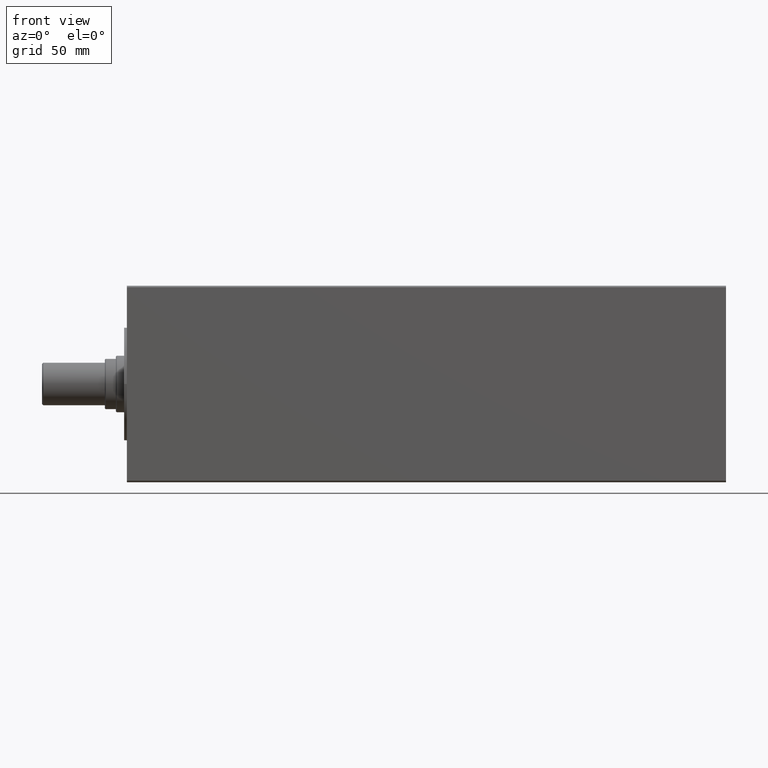
[diagram: clean part render]
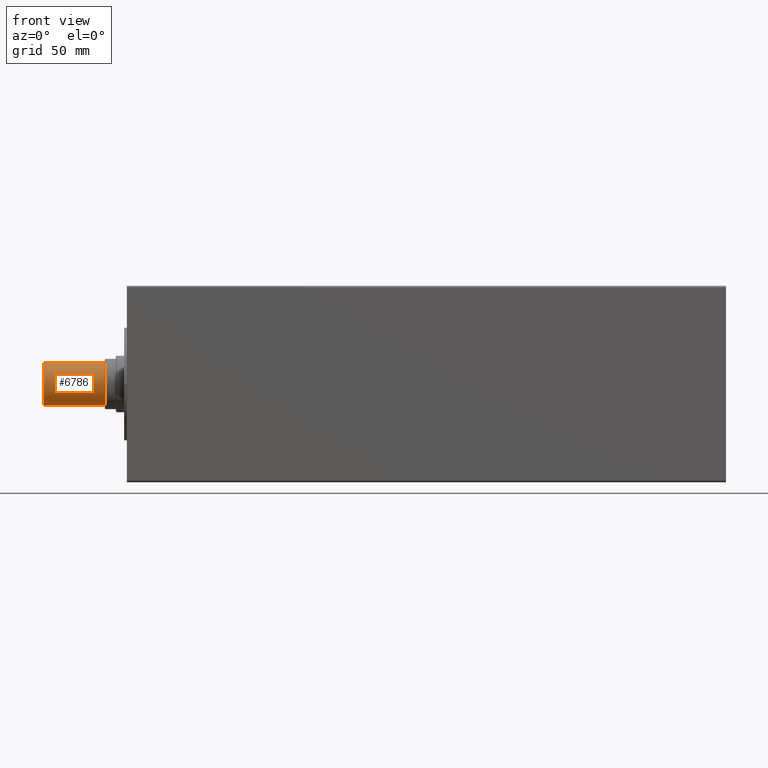
[diagram: same view with one face highlighted and labeled with its STEP entity id]
A machine part, front view. The second image highlights one B-rep face of the part: STEP entity #6786.
In plain terms, the highlighted cylindrical surface (edge-blend (fillet) strip) has radius 13.5 mm, axis along (1, -0, -0).
Its self-contained STEP definition (entity closure, byte-faithful):
#312 = ORIENTED_EDGE ( 'NONE', *, *, #18735, .F. ) ;
#1440 = AXIS2_PLACEMENT_3D ( 'NONE', #32853, #11765, #4441 ) ;
#2114 = CARTESIAN_POINT ( 'NONE',  ( 13.50000000000000000, 0.000000000000000000, -39.19999999999998153 ) ) ;
#2908 = CIRCLE ( 'NONE', #1440, 13.50000000000000000 ) ;
#3688 = EDGE_CURVE ( 'NONE', #36957, #21621, #6207, .T. ) ;
#4441 = DIRECTION ( 'NONE',  ( 1.000000000000000000, 0.000000000000000000, 0.000000000000000000 ) ) ;
#4771 = EDGE_LOOP ( 'NONE', ( #17234, #38962, #6519, #312 ) ) ;
#5686 = DIRECTION ( 'NONE',  ( 0.000000000000000000, 0.000000000000000000, 1.000000000000000000 ) ) ;
#6207 = CIRCLE ( 'NONE', #7003, 13.50000000000000000 ) ;
#6519 = ORIENTED_EDGE ( 'NONE', *, *, #23752, .T. ) ;
#6786 = ADVANCED_FACE ( 'NONE', ( #9360 ), #29991, .T. ) ;
#7003 = AXIS2_PLACEMENT_3D ( 'NONE', #28292, #18183, #14739 ) ;
#7747 = VERTEX_POINT ( 'NONE', #18700 ) ;
#9360 = FACE_OUTER_BOUND ( 'NONE', #4771, .T. ) ;
#11765 = DIRECTION ( 'NONE',  ( 0.000000000000000000, 0.000000000000000000, 1.000000000000000000 ) ) ;
#12245 = CARTESIAN_POINT ( 'NONE',  ( 13.50000000000000000, 0.000000000000000000, -40.00000000000000000 ) ) ;
#14739 = DIRECTION ( 'NONE',  ( 1.000000000000000000, 0.000000000000000000, 0.000000000000000000 ) ) ;
#17234 = ORIENTED_EDGE ( 'NONE', *, *, #32723, .F. ) ;
#18183 = DIRECTION ( 'NONE',  ( -0.000000000000000000, -0.000000000000000000, 1.000000000000000000 ) ) ;
#18700 = CARTESIAN_POINT ( 'NONE',  ( -13.50000000000000000, 1.653273178848926867E-15, 0.000000000000000000 ) ) ;
#18735 = EDGE_CURVE ( 'NONE', #7747, #43489, #2908, .T. ) ;
#19887 = DIRECTION ( 'NONE',  ( 1.000000000000000000, 0.000000000000000000, 0.000000000000000000 ) ) ;
#21395 = CARTESIAN_POINT ( 'NONE',  ( 13.50000000000000000, 0.000000000000000000, 0.000000000000000000 ) ) ;
#21621 = VERTEX_POINT ( 'NONE', #2114 ) ;
#22031 = VECTOR ( 'NONE', #32642, 1000.000000000000000 ) ;
#22437 = AXIS2_PLACEMENT_3D ( 'NONE', #40763, #5686, #19887 ) ;
#23752 = EDGE_CURVE ( 'NONE', #21621, #43489, #25301, .T. ) ;
#25301 = LINE ( 'NONE', #12245, #22031 ) ;
#26313 = LINE ( 'NONE', #41200, #44316 ) ;
#28292 = CARTESIAN_POINT ( 'NONE',  ( 0.000000000000000000, 0.000000000000000000, -39.19999999999998153 ) ) ;
#29991 = CYLINDRICAL_SURFACE ( 'NONE', #22437, 13.50000000000000000 ) ;
#32642 = DIRECTION ( 'NONE',  ( 0.000000000000000000, 0.000000000000000000, 1.000000000000000000 ) ) ;
#32723 = EDGE_CURVE ( 'NONE', #36957, #7747, #26313, .T. ) ;
#32853 = CARTESIAN_POINT ( 'NONE',  ( 0.000000000000000000, 0.000000000000000000, 0.000000000000000000 ) ) ;
#33417 = DIRECTION ( 'NONE',  ( 0.000000000000000000, 0.000000000000000000, 1.000000000000000000 ) ) ;
#36083 = CARTESIAN_POINT ( 'NONE',  ( -13.50000000000000000, 1.653273178848926867E-15, -39.19999999999998153 ) ) ;
#36957 = VERTEX_POINT ( 'NONE', #36083 ) ;
#38962 = ORIENTED_EDGE ( 'NONE', *, *, #3688, .T. ) ;
#40763 = CARTESIAN_POINT ( 'NONE',  ( 0.000000000000000000, 0.000000000000000000, -40.00000000000000000 ) ) ;
#41200 = CARTESIAN_POINT ( 'NONE',  ( -13.50000000000000000, 1.653273178848926867E-15, -40.00000000000000000 ) ) ;
#43489 = VERTEX_POINT ( 'NONE', #21395 ) ;
#44316 = VECTOR ( 'NONE', #33417, 1000.000000000000000 ) ;